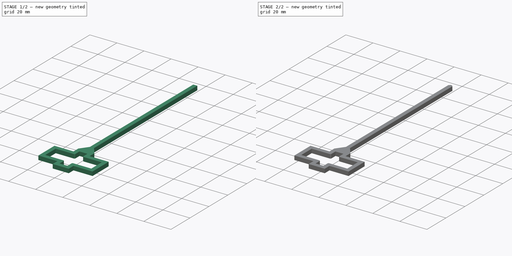
[diagram: build sequence overview — one tinted view per stage of 2, left to right]
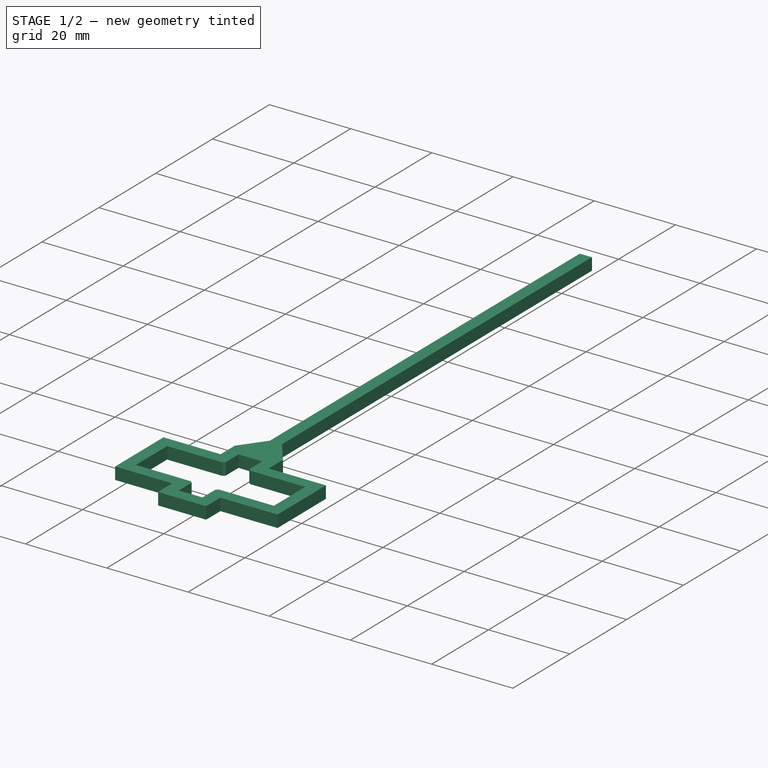
[diagram: stage 1 of 2 — iso view after this stage's code; geometry added in this stage tinted green]
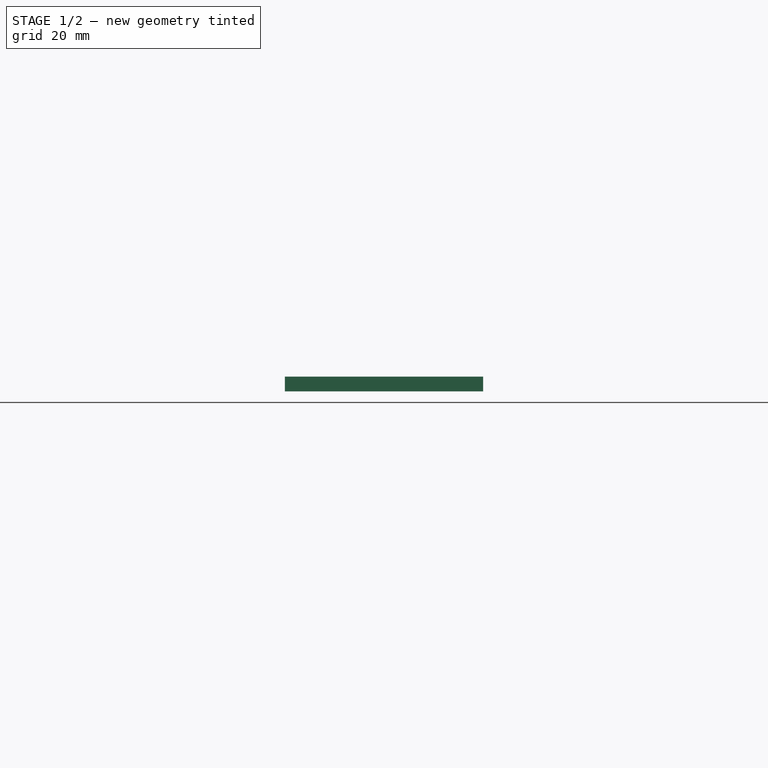
[diagram: stage 1 of 2 — front view after this stage's code; geometry added in this stage tinted green]
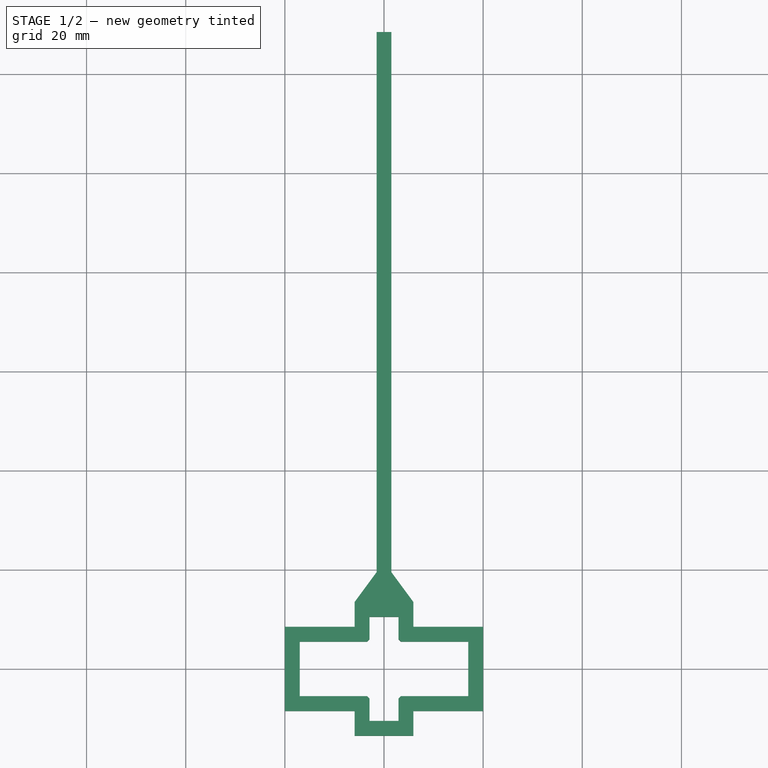
[diagram: stage 1 of 2 — top view after this stage's code; geometry added in this stage tinted green]
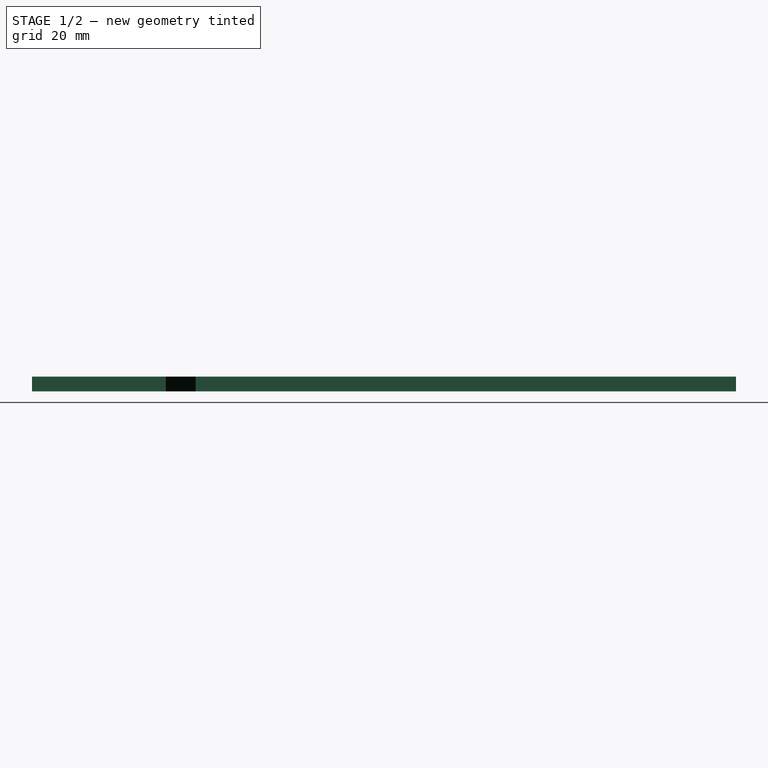
[diagram: stage 1 of 2 — right view after this stage's code; geometry added in this stage tinted green]
FCSTD DOCUMENT  (FreeCAD 0.20R29177 +426 (Git))
Label: RollerCalOutside
License: All rights reserved
LicenseURL: http://en.wikipedia.org/wiki/All_rights_reserved
objects: PartDesign::Chamfer×2, Sketcher::SketchObject×1, PartDesign::Pad×1, PartDesign::Body×1
note: 8 computed .brp shape members not serialized (recipe doc carries the construction recipe); baked Part::Feature solids carry a one-line shape summary decoded from their .brp

FEATURE [Sketcher::SketchObject] Sketch
  FullyConstrained = true
  MapMode = 5
  Support = -> [XY_Plane]
  sketch-geometry (41):
    g0: LineSegment StartX=2.921 StartY=-10.5 StartZ=0 EndX=-2.921 EndY=-10.5 EndZ=0
    g1: LineSegment StartX=-2.921 StartY=10.5 StartZ=0 EndX=2.921 EndY=10.5 EndZ=0
    g2: GeomPoint X=0 Y=0 Z=0
    g3: LineSegment StartX=-5.921 StartY=-13.5 StartZ=0 EndX=5.921 EndY=-13.5 EndZ=0
    g4: GeomPoint X=0 Y=0 Z=0
    g5: LineSegment StartX=1.5 StartY=13.5 StartZ=0 EndX=-1.5 EndY=13.5 EndZ=0
    g6: LineSegment StartX=-1.5 StartY=128.5 StartZ=0 EndX=1.5 EndY=128.5 EndZ=0
    g7: GeomPoint X=0 Y=71 Z=0
    g8: LineSegment StartX=-1.5 StartY=13.5 StartZ=0 EndX=-5.921 EndY=13.5 EndZ=0
    g9: LineSegment StartX=5.921 StartY=13.5 StartZ=0 EndX=1.5 EndY=13.5 EndZ=0
    g10: LineSegment StartX=1.5 StartY=128.5 StartZ=0 EndX=1.5 EndY=19.5 EndZ=0
    g11: LineSegment StartX=1.5 StartY=19.5 StartZ=0 EndX=1.5 EndY=13.5 EndZ=0
    g12: LineSegment StartX=-1.5 StartY=13.5 StartZ=0 EndX=-1.5 EndY=19.5 EndZ=0
    g13: LineSegment StartX=-1.5 StartY=19.5 StartZ=0 EndX=-1.5 EndY=128.5 EndZ=0
    g14: LineSegment StartX=-1.5 StartY=19.5 StartZ=0 EndX=-5.921 EndY=13.5 EndZ=0
    g15: LineSegment StartX=1.5 StartY=19.5 StartZ=0 EndX=5.921 EndY=13.5 EndZ=0
    g16: LineSegment StartX=5.921 StartY=8.5 StartZ=0 EndX=5.921 EndY=13.5 EndZ=0
    g17: LineSegment StartX=5.921 StartY=-13.5 StartZ=0 EndX=5.921 EndY=-8.5 EndZ=0
    g18: LineSegment StartX=5.921 StartY=-8.5 StartZ=0 EndX=5.921 EndY=8.5 EndZ=0
    g19: LineSegment StartX=2.921 StartY=10.5 StartZ=0 EndX=2.921 EndY=5.5 EndZ=0
    g20: LineSegment StartX=2.921 StartY=5.5 StartZ=0 EndX=2.921 EndY=-5.5 EndZ=0
    g21: LineSegment StartX=2.921 StartY=-5.5 StartZ=0 EndX=2.921 EndY=-10.5 EndZ=0
    g22: LineSegment StartX=-2.921 StartY=-10.5 StartZ=0 EndX=-2.921 EndY=-5.5 EndZ=0
    g23: LineSegment StartX=-2.921 StartY=-5.5 StartZ=0 EndX=-2.921 EndY=5.5 EndZ=0
    g24: LineSegment StartX=-2.921 StartY=5.5 StartZ=0 EndX=-2.921 EndY=10.5 EndZ=0
    g25: LineSegment StartX=-5.921 StartY=13.5 StartZ=0 EndX=-5.921 EndY=8.5 EndZ=0
    g26: LineSegment StartX=-5.921 StartY=8.5 StartZ=0 EndX=-5.921 EndY=-8.5 EndZ=0
    g27: LineSegment StartX=-5.921 StartY=-8.5 StartZ=0 EndX=-5.921 EndY=-13.5 EndZ=0
    g28: LineSegment StartX=2.921 StartY=5.5 StartZ=0 EndX=17 EndY=5.5 EndZ=0
    g29: LineSegment StartX=17 StartY=5.5 StartZ=0 EndX=17 EndY=-5.5 EndZ=0
    g30: LineSegment StartX=17 StartY=-5.5 StartZ=0 EndX=2.921 EndY=-5.5 EndZ=0
    g31: LineSegment StartX=5.921 StartY=8.5 StartZ=0 EndX=20 EndY=8.5 EndZ=0
    g32: LineSegment StartX=20 StartY=8.5 StartZ=0 EndX=20 EndY=-8.5 EndZ=0
    g33: LineSegment StartX=20 StartY=-8.5 StartZ=0 EndX=5.921 EndY=-8.5 EndZ=0
    g34: LineSegment StartX=-5.921 StartY=8.5 StartZ=0 EndX=-20 EndY=8.5 EndZ=0
    g35: LineSegment StartX=-20 StartY=8.5 StartZ=0 EndX=-20 EndY=-8.5 EndZ=0
    g36: LineSegment StartX=-20 StartY=-8.5 StartZ=0 EndX=-5.921 EndY=-8.5 EndZ=0
    g37: LineSegment StartX=-2.921 StartY=5.5 StartZ=0 EndX=-17 EndY=5.5 EndZ=0
    g38: LineSegment StartX=-17 StartY=5.5 StartZ=0 EndX=-17 EndY=-5.5 EndZ=0
    g39: LineSegment StartX=-17 StartY=-5.5 StartZ=0 EndX=-2.921 EndY=-5.5 EndZ=0
    g40: LineSegment StartX=17 StartY=5.5 StartZ=0 EndX=20 EndY=8.5 EndZ=0
  constraints (104):
    c: Coincident(g21,g0)
    c: Coincident(g0,g22)
    c: Coincident(g24,g1)
    c: Coincident(g1,g19)
    c: Horizontal(g0)
    c: Horizontal(g1)
    c: Symmetric(g0,g19,g2)
    c: Coincident(g2,g-1)
    c: Coincident(g16,g9)
    c: Coincident(g8,g25)
    c: Coincident(g27,g3)
    c: Coincident(g3,g17)
    c: Horizontal(g3)
    c: Symmetric(g8,g17,g4)
    c: Coincident(g4,g2)
    c: DistanceX(g19,g16) = 3
    c: DistanceY(g19,g16) = 3
    c: DistanceX(g0,g0) = 5.842
    c: Coincident(g11,g5)
    c: Coincident(g5,g12)
    c: Coincident(g13,g6)
    c: Coincident(g6,g10)
    c: Horizontal(g5)
    c: Horizontal(g6)
    c: Symmetric(g5,g10,g7)
    c: PointOnObject(g7,g-2)
    c: Horizontal(g8)
    c: Horizontal(g9)
    c: Coincident(g11,g9)
    c: Coincident(g8,g12)
    c: DistanceX(g6,g6) = 3
    c: DistanceY(g12,g13) = 115
    c: Coincident(g10,g11)
    c: Vertical(g10)
    c: Vertical(g11)
    c: Coincident(g12,g13)
    c: Vertical(g12)
    c: Vertical(g13)
    c: Equal(g12,g11)
    c: Coincident(g14,g12)
    c: Coincident(g14,g25)
    c: Coincident(g15,g10)
    c: Coincident(g15,g16)
    c: DistanceY(g12,g12) = 6
    c: Coincident(g18,g16)
    c: Vertical(g16)
    c: Coincident(g17,g18)
    c: Vertical(g17)
    c: Vertical(g18)
    c: Coincident(g19,g20)
    c: Vertical(g19)
    c: Coincident(g20,g21)
    c: Vertical(g20)
    c: Vertical(g21)
    c: Coincident(g22,g23)
    c: Vertical(g22)
    c: Coincident(g23,g24)
    c: Vertical(g24)
    c: Coincident(g25,g26)
    c: Coincident(g26,g27)
    c: Vertical(g27)
    c: Symmetric(g16,g26,g2)
    c: DistanceY(g23,g23) = 11
    c: Equal(g23,g20)
    c: Coincident(g28,g19)
    c: Horizontal(g28)
    c: Coincident(g29,g28)
    c: Vertical(g29)
    c: Coincident(g30,g29)
    c: Coincident(g30,g21)
    c: Horizontal(g30)
    c: Coincident(g31,g16)
    c: Horizontal(g31)
    c: Coincident(g32,g31)
    c: Vertical(g32)
    c: Coincident(g33,g32)
    c: Coincident(g33,g17)
    c: Horizontal(g33)
    c: Coincident(g34,g25)
    c: Horizontal(g34)
    c: Coincident(g35,g34)
    c: Vertical(g35)
    c: Coincident(g36,g35)
    c: Coincident(g36,g27)
    c: Horizontal(g36)
    c: Coincident(g37,g24)
    c: Horizontal(g37)
    c: Coincident(g38,g37)
    c: Vertical(g38)
    c: Coincident(g39,g38)
    c: Coincident(g39,g22)
    c: Horizontal(g39)
    c: Symmetric(g24,g21,g2)
    c: PointOnObject(g24,g28)
    c: Equal(g37,g28)
    c: Equal(g31,g34)
    c: PointOnObject(g25,g31)
    c: Symmetric(g17,g25,g2)
    c: DistanceY(g0,g1) = 21
    c: Coincident(g40,g28)
    c: Coincident(g40,g31)
    c: Angle(g40,g-1) = 2.35619
    c: DistanceY(g28,g31) = 3
    c: DistanceX(g2,g29) = 17
FEATURE [PartDesign::Pad] Pad
  Direction = (0,0,1)
  Length = 3
  Length2 = 10
  Profile = -> Sketch
  ReferenceAxis = -> Sketch [N_Axis]
  Type = 0
FEATURE [PartDesign::Chamfer] Chamfer
  Angle = 45
  Base = -> Pad [Edge49,Edge56,Edge74,Edge65]
  BaseFeature = -> Pad
  ChamferType = 0
  FlipDirection = false
  Size = 0.5
  Size2 = 1
  SupportTransform = false
  UseAllEdges = false
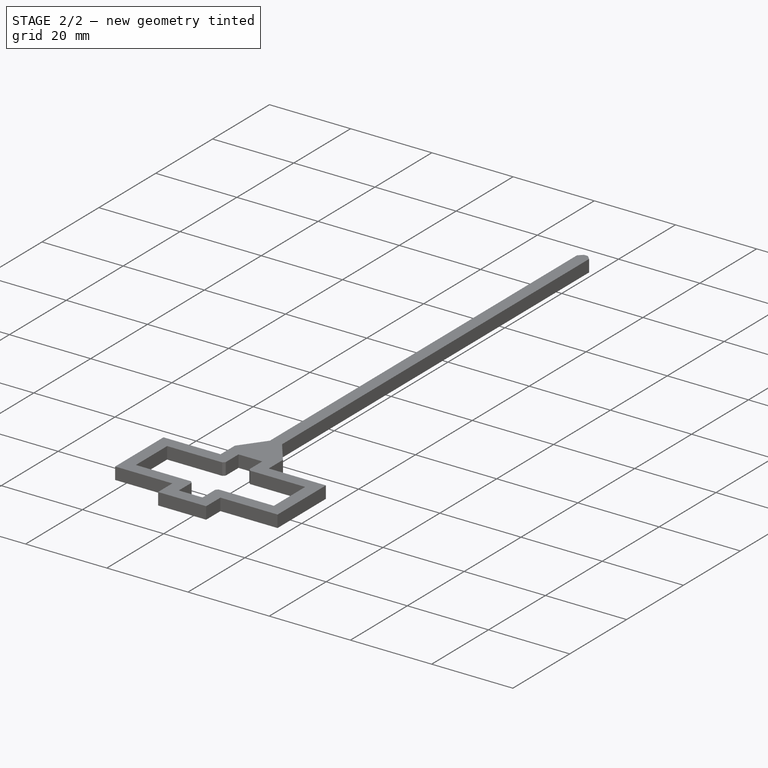
[diagram: stage 2 of 2 — iso view after this stage's code; geometry added in this stage tinted green]
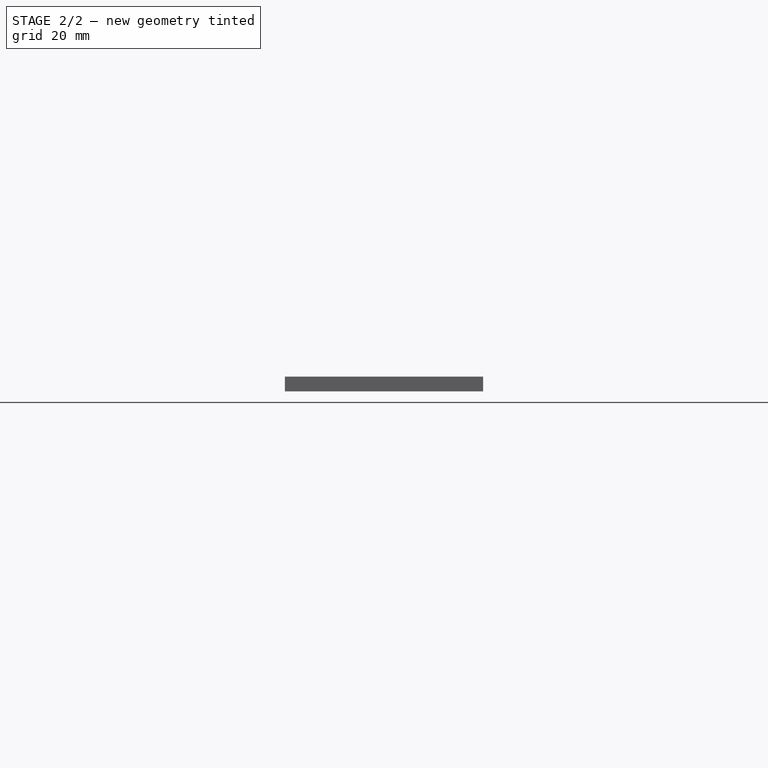
[diagram: stage 2 of 2 — front view after this stage's code; geometry added in this stage tinted green]
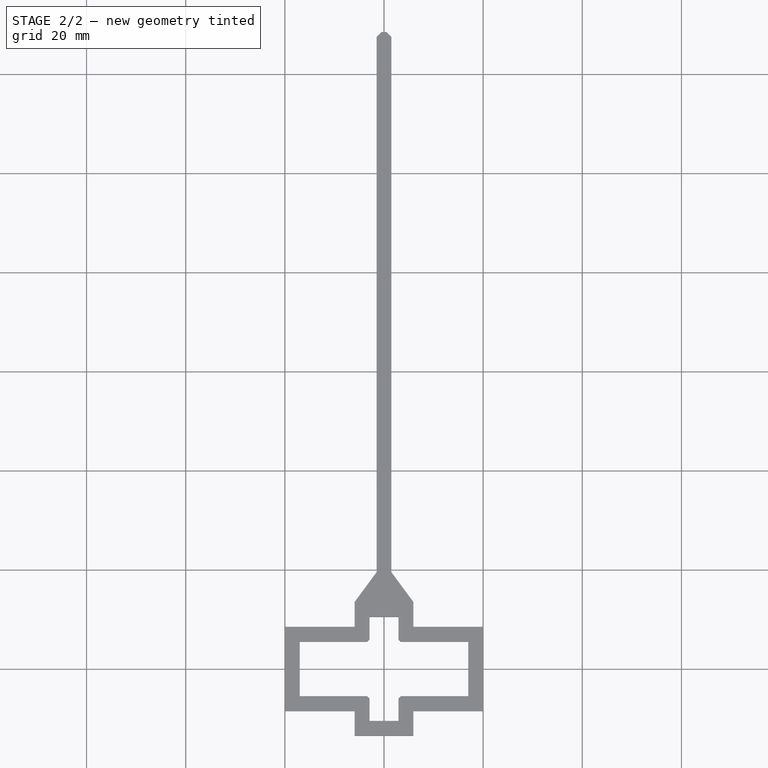
[diagram: stage 2 of 2 — top view after this stage's code; geometry added in this stage tinted green]
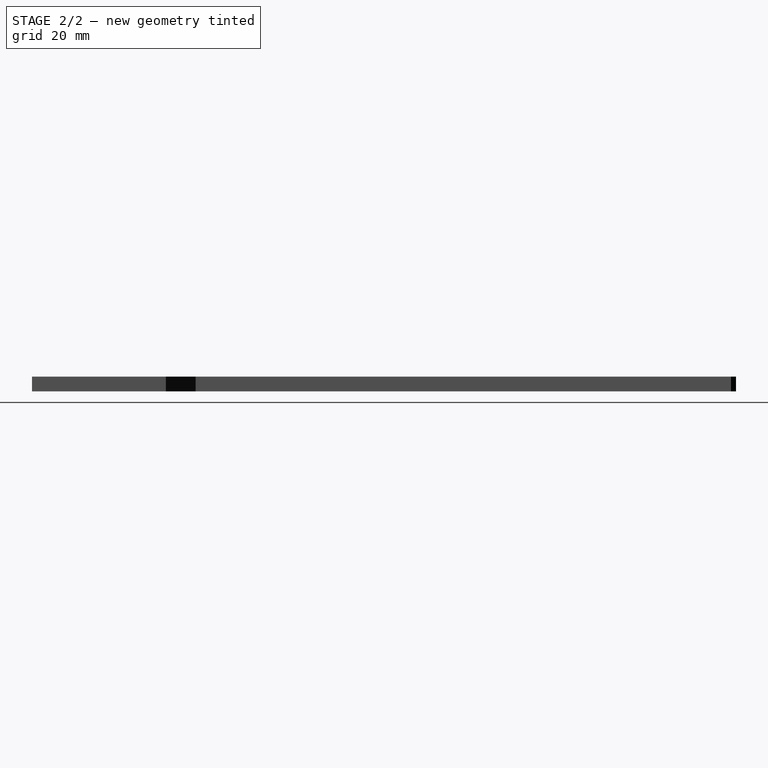
[diagram: stage 2 of 2 — right view after this stage's code; geometry added in this stage tinted green]
FEATURE [PartDesign::Chamfer] Chamfer001
  Angle = 45
  Base = -> Chamfer [Edge95,Edge96]
  BaseFeature = -> Chamfer
  ChamferType = 0
  FlipDirection = false
  Size = 1
  Size2 = 1
  SupportTransform = false
  UseAllEdges = false
FEATURE [PartDesign::Body] Body
  Group = -> [Sketch,Pad,Chamfer,Chamfer001]
  Origin = -> Origin
  Tip = -> Chamfer001
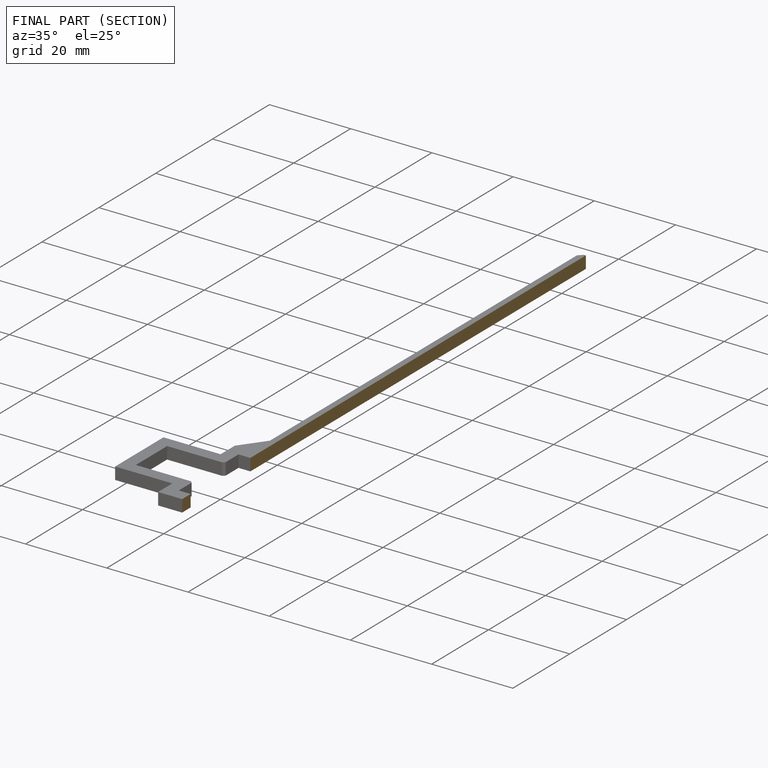
[diagram: finished part — half-section view (interior)]
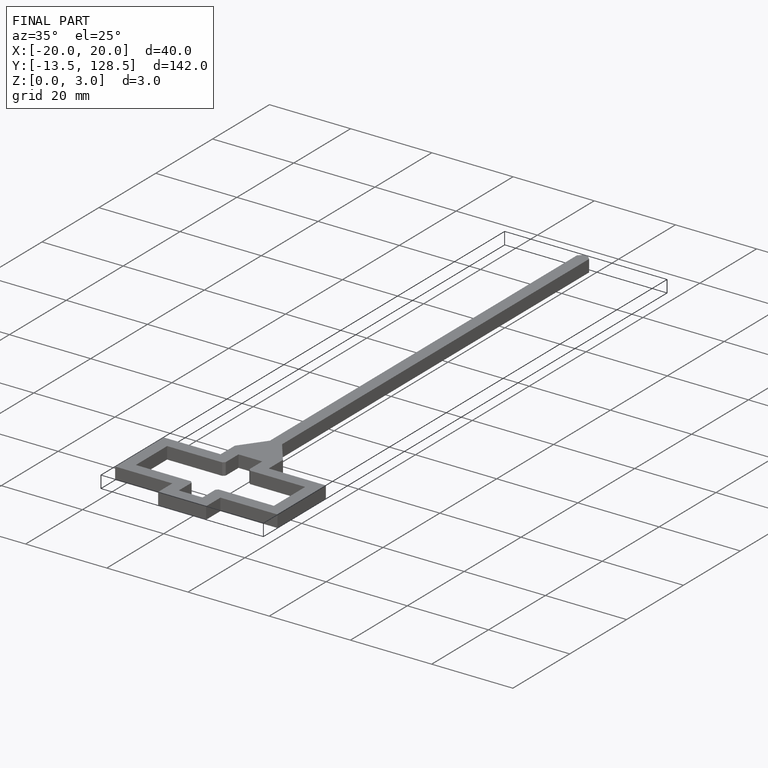
[diagram: finished part — iso view with bounding-box wireframe]
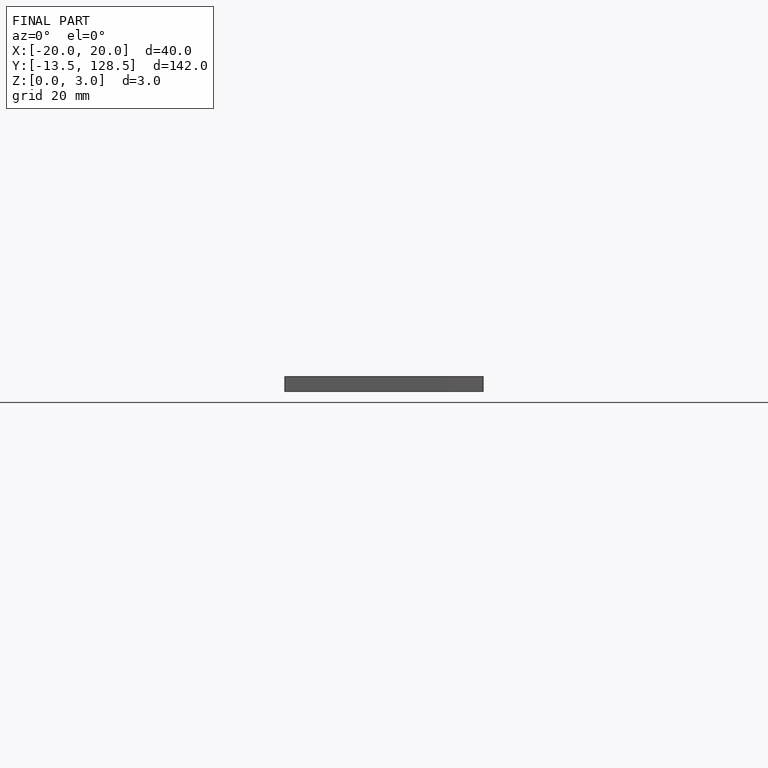
[diagram: finished part — front view with bounding-box wireframe]
